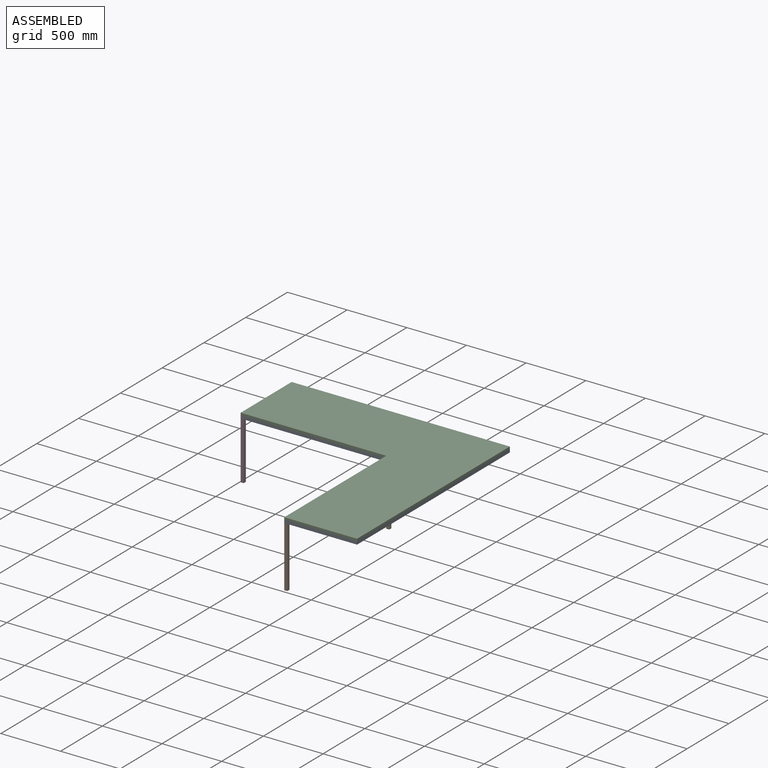
[diagram: assembled view]
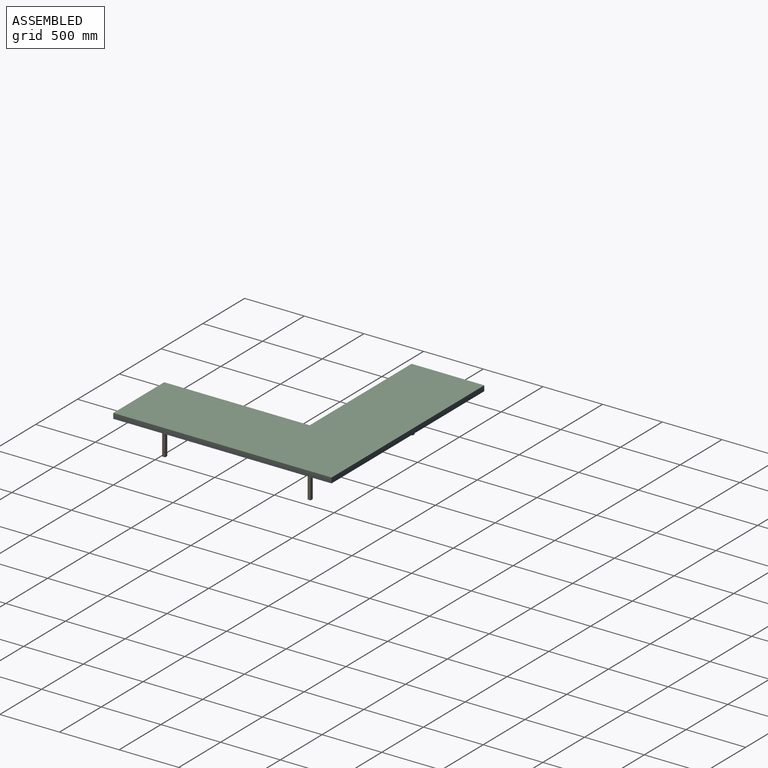
[diagram: assembled view, second angle]
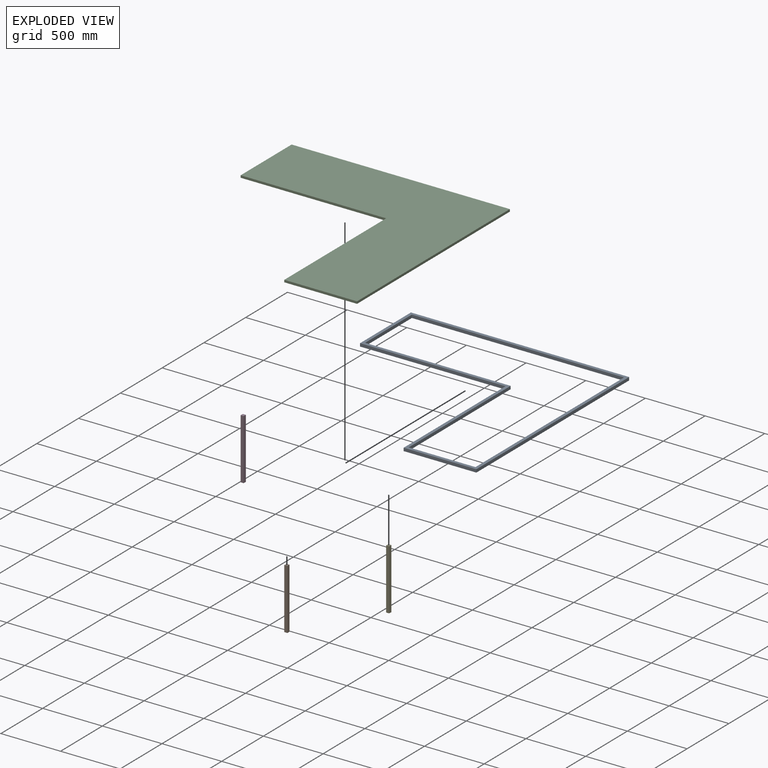
[diagram: exploded view]
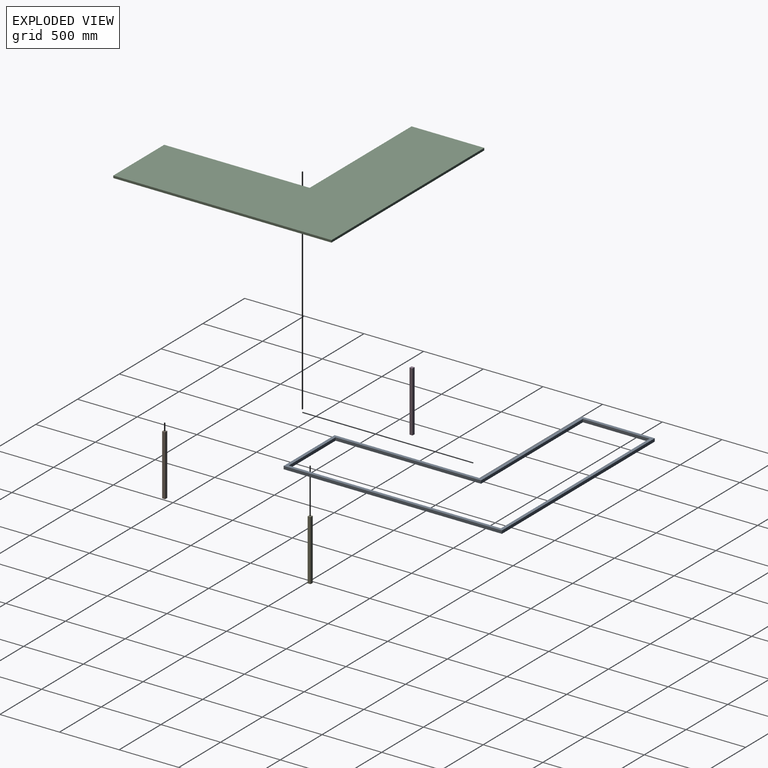
[diagram: exploded view, second angle]
ASSEMBLY  parts=5 mates=4
PART A: 14 faces, bbox 1828.8x1828.8x25.4 mm
  f0: plane 609.6x25.4mm, normal (-1,0,0), area 15483.8mm2, adj f1,f11,f12,f13
  f1: plane 1828.8x25.4mm, normal (0,1,0), area 46451.5mm2, adj f0,f2,f12,f13
  f2: plane 1828.8x25.4mm, normal (1,0,0), area 46451.5mm2, adj f1,f3,f12,f13
  f3: plane 609.6x25.4mm, normal (0,-1,0), area 15483.8mm2, adj f2,f4,f12,f13
  f4: plane 1219.2x25.4mm, normal (-1,0,0), area 30967.7mm2, adj f3,f11,f12,f13
  f5: plane 558.8x25.4mm, normal (1,0,0), area 14193.5mm2, adj f6,f10,f12,f13
  f6: plane 1219.2x25.4mm, normal (0,1,0), area 30967.7mm2, adj f5,f7,f12,f13
  f7: plane 1219.2x25.4mm, normal (1,0,0), area 30967.7mm2, adj f6,f8,f12,f13
  f8: plane 558.8x25.4mm, normal (0,1,0), area 14193.5mm2, adj f7,f9,f12,f13
  f9: plane 1778x25.4mm, normal (-1,0,0), area 45161.2mm2, adj f8,f10,f12,f13
  f10: plane 1778x25.4mm, normal (0,-1,0), area 45161.2mm2, adj f5,f9,f12,f13
  f11: plane 1219.2x25.4mm, normal (0,-1,0), area 30967.7mm2, adj f0,f4,f12,f13
  f12: plane 1828.8x1828.8mm, normal (0,0,-1), area 183225.4mm2, adj f0,f1,f2,f3,f4,f5,f6,f7
  f13: plane 1828.8x1828.8mm, normal (0,0,1), area 183225.4mm2, adj f0,f1,f2,f3,f4,f5,f6,f7
PART B: 6 faces, bbox 25.4x25.4x508 mm
  f0: plane 508x25.4mm, normal (-1,0,0), area 12903.2mm2, adj f1,f3,f4,f5
  f1: plane 508x25.4mm, normal (0,-1,0), area 12903.2mm2, adj f0,f2,f4,f5
  f2: plane 508x25.4mm, normal (1,0,0), area 12903.2mm2, adj f1,f3,f4,f5
  f3: plane 508x25.4mm, normal (0,1,0), area 12903.2mm2, adj f0,f2,f4,f5
  f4: plane 25.4x25.4mm, normal (0,0,1), area 645.2mm2, adj f0,f1,f2,f3
  f5: plane 25.4x25.4mm, normal (0,0,-1), area 645.2mm2, adj f0,f1,f2,f3
PART C: 8 faces, bbox 1828.8x1828.8x19.1 mm
  f0: plane 1828.8x19.05mm, normal (0,1,0), area 34838.6mm2, adj f1,f5,f6,f7
  f1: plane 609.6x19.05mm, normal (-1,0,0), area 11612.9mm2, adj f0,f2,f6,f7
  f2: plane 1219.2x19.05mm, normal (0,-1,0), area 23225.8mm2, adj f1,f3,f6,f7
  f3: plane 1219.2x19.05mm, normal (-1,0,0), area 23225.8mm2, adj f2,f4,f6,f7
  f4: plane 609.6x19.05mm, normal (0,-1,0), area 11612.9mm2, adj f3,f5,f6,f7
  f5: plane 1828.8x19.05mm, normal (1,0,0), area 34838.6mm2, adj f0,f4,f6,f7
  f6: plane 1828.8x1828.8mm, normal (0,0,1), area 1858060.8mm2, adj f0,f1,f2,f3,f4,f5
  f7: plane 1828.8x1828.8mm, normal (0,0,-1), area 1858060.8mm2, adj f0,f1,f2,f3,f4,f5
PART D: same geometry as B
PART E: same geometry as B
PLACE A rot(axis=(0.2,0.84,-0.51),0deg) t=(868.63,1557.92,901.2)mm
PLACE B rot(axis=(0.2,0.84,-0.51),0deg) t=(2087.83,338.72,367.8)mm
PLACE C rot(axis=(0.2,0.84,-0.51),0deg) t=(868.63,1557.92,901.2)mm
PLACE D rot(axis=(0.2,0.84,-0.51),0deg) t=(868.63,1557.92,393.2)mm
PLACE E rot(axis=(0.2,0.84,-0.51),0deg) t=(2087.83,1557.92,367.8)mm
MATE fastened C.f7 <-> A.f13  axis (0,0,1) through (868.63,1557.92,901.2)mm
MATE fastened B.f4 <-> A.f12  axis (0,0,1) through (2087.83,338.72,875.8)mm
MATE fastened E.f4 <-> A.f12  axis (0,0,1) through (2087.83,1557.92,875.8)mm
MATE fastened D.f4 <-> A.f13  axis (0,0,1) through (868.63,1557.92,901.2)mm
